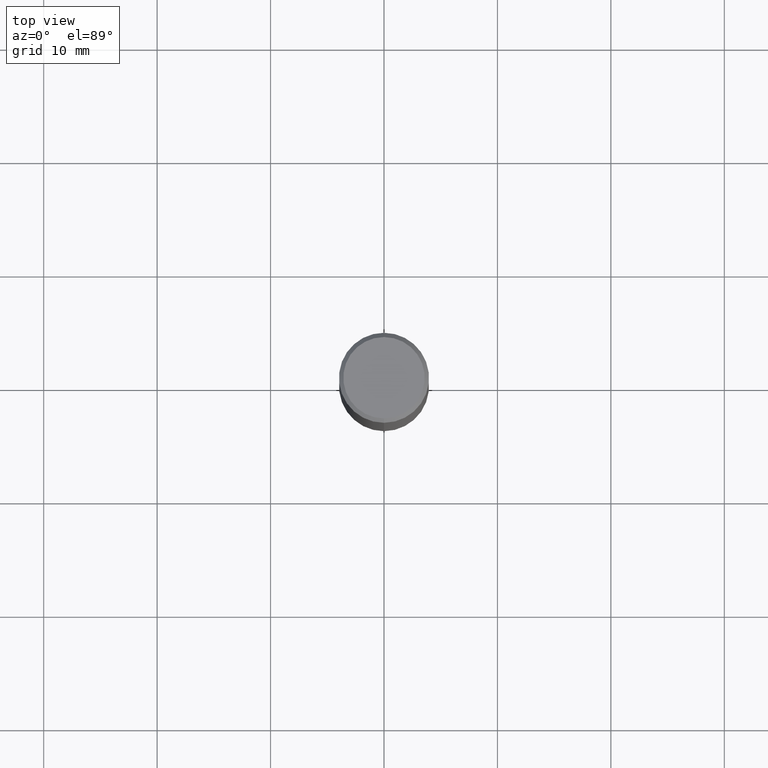
[diagram: clean part render]
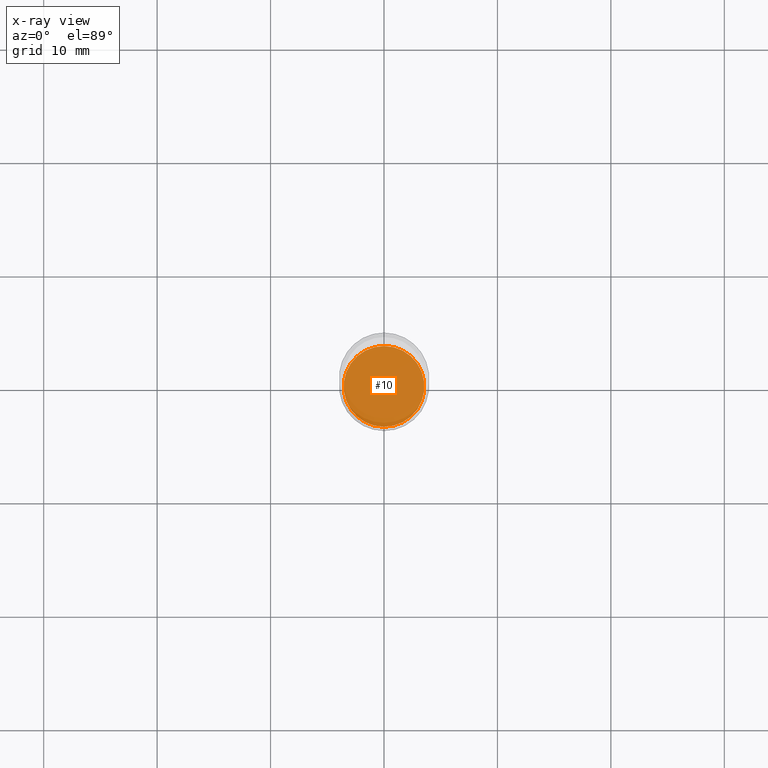
[diagram: x-ray — body ghosted, one internal face saturated and labeled with its STEP entity id]
A machine part, top view, then the same camera in x-ray: the body is ghosted and one INTERNAL B-rep face — a face not visible from any outside direction — is saturated and labeled: STEP entity #10.
In plain terms, the highlighted planar face has unit normal (-0, 0, 1).
Its self-contained STEP definition (entity closure, byte-faithful):
#9 = DIRECTION ( 'NONE',  ( -2.445343774695751829E-29, 3.491660391052294645E-15, 1.000000000000000000 ) ) ;
#10 = ADVANCED_FACE ( 'NONE', ( #12 ), #14, .F. ) ;
#12 = FACE_OUTER_BOUND ( 'NONE', #267, .T. ) ;
#14 = PLANE ( 'NONE',  #162 ) ;
#34 = CARTESIAN_POINT ( 'NONE',  ( 4.279351605717566121E-29, -6.110405684341516320E-15, -1.750000000000000222 ) ) ;
#51 = ORIENTED_EDGE ( 'NONE', *, *, #329, .F. ) ;
#57 = CIRCLE ( 'NONE', #80, 0.1401000000000000023 ) ;
#62 = DIRECTION ( 'NONE',  ( -2.445343774695752109E-29, 3.491660391052294645E-15, 1.000000000000000000 ) ) ;
#63 = VERTEX_POINT ( 'NONE', #215 ) ;
#80 = AXIS2_PLACEMENT_3D ( 'NONE', #227, #62, #183 ) ;
#92 = DIRECTION ( 'NONE',  ( -6.982962677686265922E-15, -1.000000000000000000, 3.491660391052294645E-15 ) ) ;
#162 = AXIS2_PLACEMENT_3D ( 'NONE', #176, #9, #92 ) ;
#163 = DIRECTION ( 'NONE',  ( -2.445343774695752109E-29, 3.491660391052294645E-15, 1.000000000000000000 ) ) ;
#167 = CIRCLE ( 'NONE', #287, 0.1401000000000000023 ) ;
#176 = CARTESIAN_POINT ( 'NONE',  ( 4.279351605717566121E-29, -6.110405684341516320E-15, -1.750000000000000222 ) ) ;
#183 = DIRECTION ( 'NONE',  ( -6.982962677686265922E-15, -1.000000000000000000, 3.899854380677035588E-15 ) ) ;
#215 = CARTESIAN_POINT ( 'NONE',  ( 9.972467296393428329E-16, 0.1400999999999938961, -1.750000000000000666 ) ) ;
#227 = CARTESIAN_POINT ( 'NONE',  ( 4.279351605717566121E-29, -6.110405684341516320E-15, -1.750000000000000222 ) ) ;
#239 = ORIENTED_EDGE ( 'NONE', *, *, #383, .F. ) ;
#267 = EDGE_LOOP ( 'NONE', ( #51, #239 ) ) ;
#287 = AXIS2_PLACEMENT_3D ( 'NONE', #34, #163, #321 ) ;
#321 = DIRECTION ( 'NONE',  ( -6.982962677686265922E-15, -1.000000000000000000, 3.899854380677035588E-15 ) ) ;
#329 = EDGE_CURVE ( 'NONE', #499, #63, #57, .T. ) ;
#357 = CARTESIAN_POINT ( 'NONE',  ( -9.783130711438031058E-16, -0.1401000000000061085, -1.749999999999999556 ) ) ;
#383 = EDGE_CURVE ( 'NONE', #63, #499, #167, .T. ) ;
#499 = VERTEX_POINT ( 'NONE', #357 ) ;